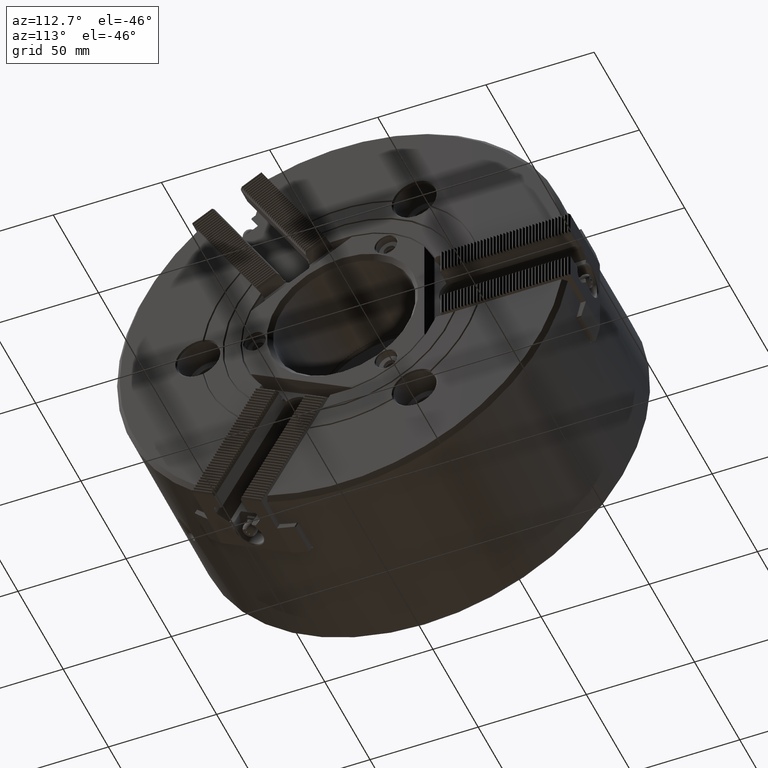
[diagram: clean part render]
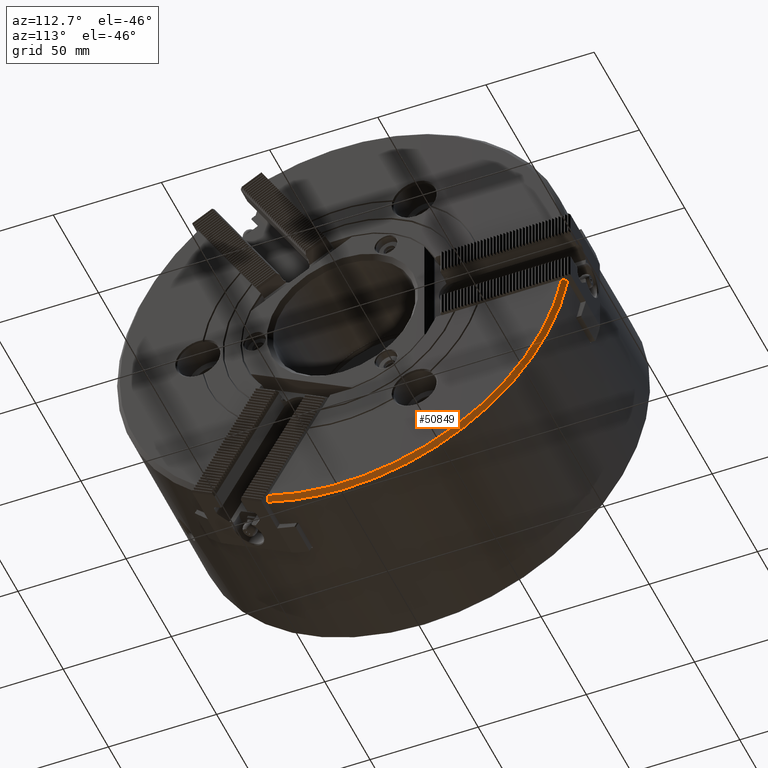
[diagram: same view with one face highlighted and labeled with its STEP entity id]
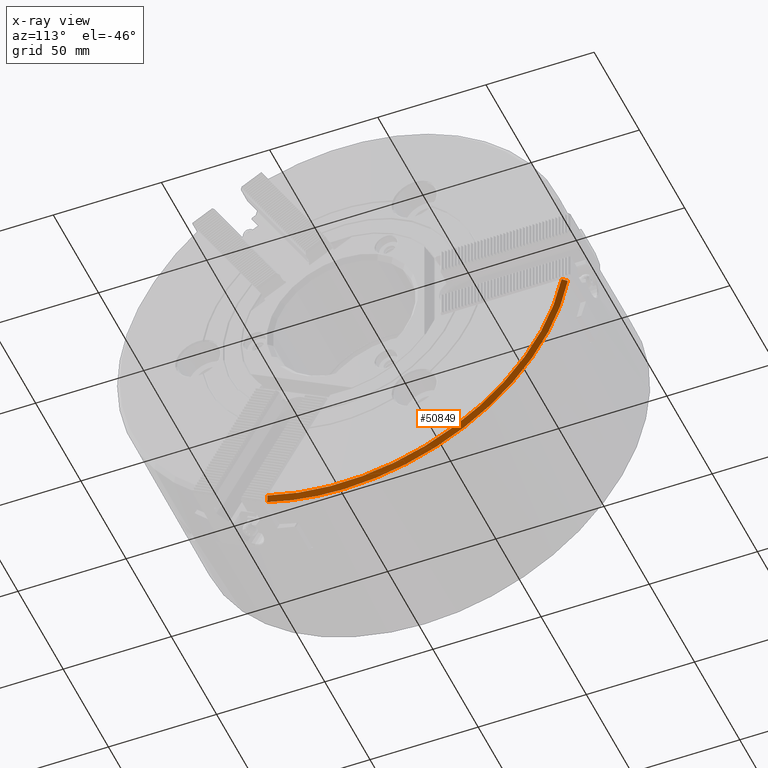
[diagram: x-ray of the same camera — body ghosted, the highlighted face saturated]
A machine part, auxiliary view. The second image highlights one B-rep face of the part: STEP entity #50849.
The next image is the same camera in x-ray: the body ghosted, the highlighted face saturated — about 0% of this face is hidden behind the body in this view.
In plain terms, the highlighted conical surface has half-angle 45 deg.
Its self-contained STEP definition (entity closure, byte-faithful):
#153=CONICAL_SURFACE('',#53037,103.,0.785398163397448);
#2392=CIRCLE('',#53038,9064.77997890194);
#2393=CIRCLE('',#53039,103.);
#2394=CIRCLE('',#53040,9064.77999175681);
#2395=CIRCLE('',#53041,105.);
#11785=ORIENTED_EDGE('',*,*,#22980,.F.);
#11786=ORIENTED_EDGE('',*,*,#22981,.F.);
#11787=ORIENTED_EDGE('',*,*,#22982,.T.);
#11788=ORIENTED_EDGE('',*,*,#22983,.T.);
#22980=EDGE_CURVE('',#28574,#28575,#2392,.T.);
#22981=EDGE_CURVE('',#28576,#28574,#2393,.T.);
#22982=EDGE_CURVE('',#28576,#28577,#2394,.T.);
#22983=EDGE_CURVE('',#28577,#28575,#2395,.T.);
#28574=VERTEX_POINT('',#67243);
#28575=VERTEX_POINT('',#67244);
#28576=VERTEX_POINT('',#67246);
#28577=VERTEX_POINT('',#67248);
#32085=EDGE_LOOP('',(#11785,#11786,#11787,#11788));
#34364=FACE_BOUND('',#32085,.T.);
#50849=ADVANCED_FACE('',(#34364),#153,.T.);
#53037=AXIS2_PLACEMENT_3D('',#67241,#56678,#56679);
#53038=AXIS2_PLACEMENT_3D('',#67242,#56680,#56681);
#53039=AXIS2_PLACEMENT_3D('',#67245,#56682,#56683);
#53040=AXIS2_PLACEMENT_3D('',#67247,#56684,#56685);
#53041=AXIS2_PLACEMENT_3D('',#67249,#56686,#56687);
#56678=DIRECTION('',(-1.,0.,0.));
#56679=DIRECTION('',(0.,0.,1.));
#56680=DIRECTION('',(-2.23317041549511E-11,-2.19755093847935E-11,1.));
#56681=DIRECTION('',(0.712878633461196,0.701287426063307,3.13309430442898E-11));
#56682=DIRECTION('',(1.,0.,0.));
#56683=DIRECTION('',(0.,0.,-1.));
#56684=DIRECTION('',(1.03764860858549E-10,0.866025403733475,-0.500000000088271));
#56685=DIRECTION('',(0.712878633460975,-0.350643713157731,-0.607332726252894));
#56686=DIRECTION('',(1.,0.,0.));
#56687=DIRECTION('',(0.,0.,-1.));
#67241=CARTESIAN_POINT('',(-6.07153216591882E-15,0.,0.));
#67242=CARTESIAN_POINT('',(-6462.08796398602,-6255.69124699156,-18.5000002840081));
#67243=CARTESIAN_POINT('',(1.10156568093734E-13,101.324972242779,-18.5000000000005));
#67244=CARTESIAN_POINT('',(-2.,103.357389672921,-18.5000000000005));
#67245=CARTESIAN_POINT('',(-6.07153216591882E-15,0.,0.));
#67246=CARTESIAN_POINT('',(-1.48719090610219E-14,-34.6410161647788,-96.9999999952141));
#67247=CARTESIAN_POINT('',(-6462.08797314798,3143.86709911613,5408.33754527635));
#67248=CARTESIAN_POINT('',(-2.,-35.6572248798244,-98.7601251207674));
#67249=CARTESIAN_POINT('',(-2.,0.,0.));